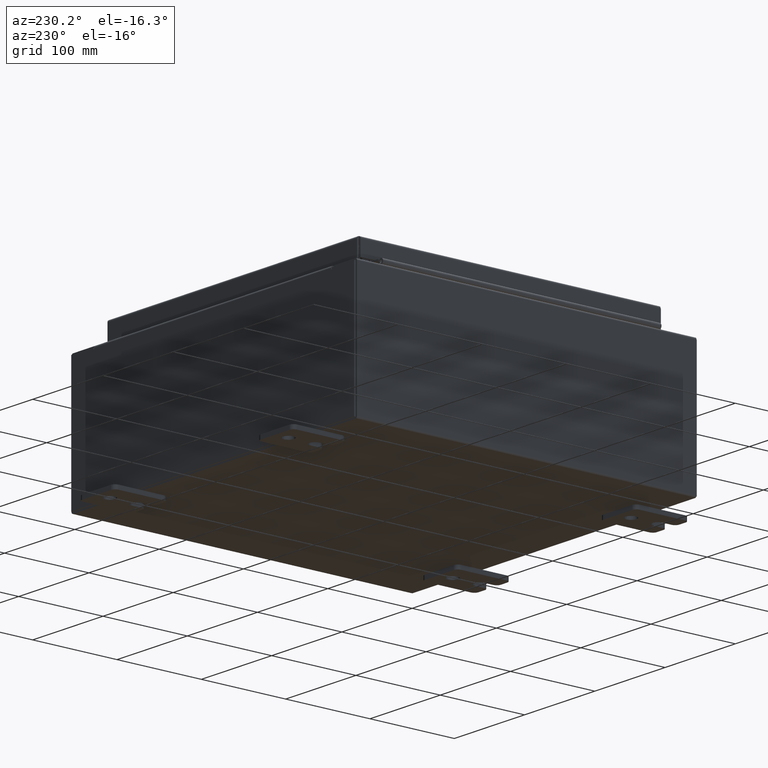
[diagram: clean part render]
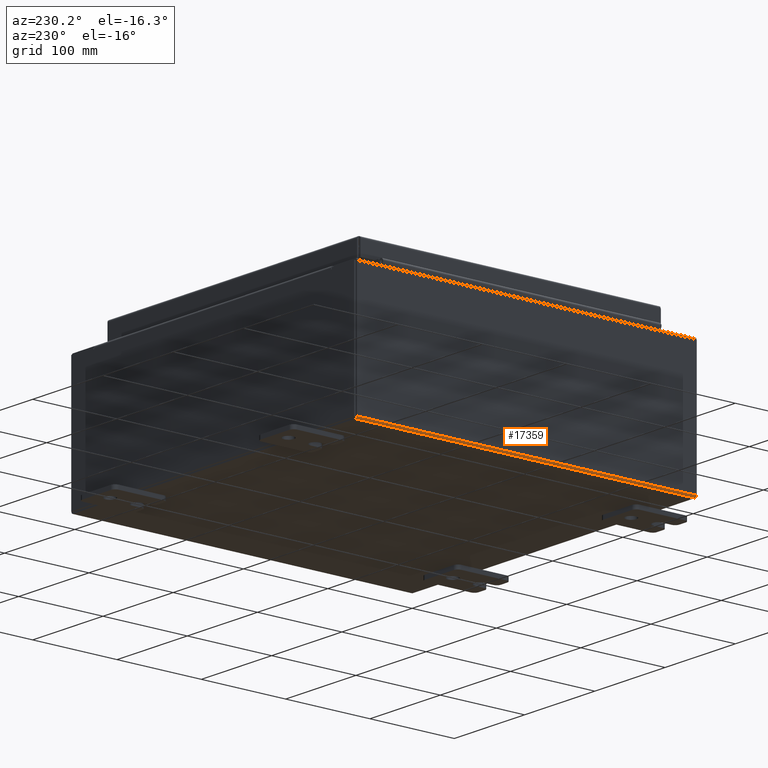
[diagram: same view with one face highlighted and labeled with its STEP entity id]
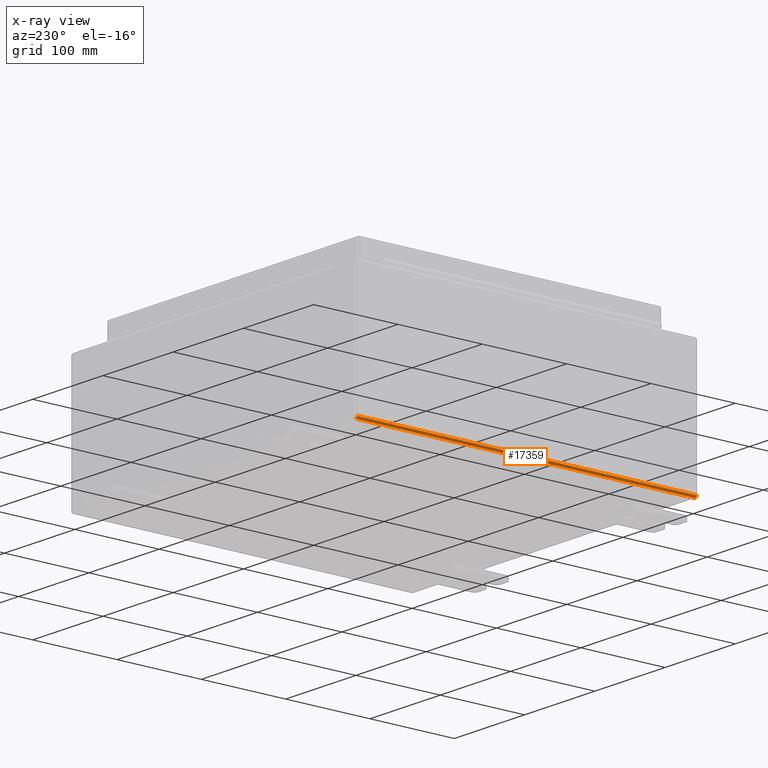
[diagram: x-ray of the same camera — body ghosted, the highlighted face saturated]
A machine part, auxiliary view. The second image highlights one B-rep face of the part: STEP entity #17359.
The next image is the same camera in x-ray: the body ghosted, the highlighted face saturated — about 0% of this face is hidden behind the body in this view.
In plain terms, the highlighted cylindrical surface (edge-blend (fillet) strip) has radius 2.2276 mm, axis along (0, -1, 0).
Its self-contained STEP definition (entity closure, byte-faithful):
#3608 = CARTESIAN_POINT ( 'NONE',  ( -7.912300000000001000, -7.925300000000000900, -0.07469999999999994700 ) ) ;
#6359 = CARTESIAN_POINT ( 'NONE',  ( -7.912300000000001000, -7.925300000000000900, 0.01300000000000015200 ) ) ;
#6621 = ORIENTED_EDGE ( 'NONE', *, *, #76442, .F. ) ;
#11426 = EDGE_CURVE ( 'NONE', #31924, #101505, #64102, .T. ) ;
#14631 = DIRECTION ( 'NONE',  ( 0.0000000000000000000, 0.0000000000000000000, -1.000000000000000000 ) ) ;
#17359 = ADVANCED_FACE ( 'NONE', ( #60896 ), #77757, .T. ) ;
#29583 = CARTESIAN_POINT ( 'NONE',  ( -7.912300000000001000, 7.925299999999998200, 0.01300000000000015200 ) ) ;
#31924 = VERTEX_POINT ( 'NONE', #47425 ) ;
#34865 = ORIENTED_EDGE ( 'NONE', *, *, #11426, .F. ) ;
#36158 = DIRECTION ( 'NONE',  ( -0.0000000000000000000, 1.000000000000000000, -0.0000000000000000000 ) ) ;
#37910 = DIRECTION ( 'NONE',  ( 0.0000000000000000000, 0.0000000000000000000, -1.000000000000000000 ) ) ;
#39115 = EDGE_LOOP ( 'NONE', ( #34865, #6621, #100061, #82092 ) ) ;
#39466 = CARTESIAN_POINT ( 'NONE',  ( -7.912300000000001000, -7.925300000000000900, 0.01300000000000015200 ) ) ;
#44553 = AXIS2_PLACEMENT_3D ( 'NONE', #6359, #63994, #14631 ) ;
#47425 = CARTESIAN_POINT ( 'NONE',  ( -7.912300000000001000, -7.925300000000000900, -0.07469999999999994700 ) ) ;
#47732 = DIRECTION ( 'NONE',  ( 0.0000000000000000000, -1.000000000000000000, 0.0000000000000000000 ) ) ;
#49218 = EDGE_CURVE ( 'NONE', #101505, #96943, #100423, .T. ) ;
#55896 = CARTESIAN_POINT ( 'NONE',  ( -7.912300000000001000, 7.925299999999998200, -0.07470000000000000300 ) ) ;
#60029 = AXIS2_PLACEMENT_3D ( 'NONE', #39466, #47732, #88986 ) ;
#60896 = FACE_OUTER_BOUND ( 'NONE', #39115, .T. ) ;
#62142 = VERTEX_POINT ( 'NONE', #74601 ) ;
#62754 = EDGE_CURVE ( 'NONE', #62142, #96943, #68811, .T. ) ;
#63994 = DIRECTION ( 'NONE',  ( 0.0000000000000000000, -1.000000000000000000, 0.0000000000000000000 ) ) ;
#64102 = LINE ( 'NONE', #3608, #103127 ) ;
#65689 = CIRCLE ( 'NONE', #44553, 0.08770000000000009700 ) ;
#68811 = LINE ( 'NONE', #85660, #93607 ) ;
#74601 = CARTESIAN_POINT ( 'NONE',  ( -8.000000000000001800, -7.925300000000000900, 0.01299999999999984700 ) ) ;
#76442 = EDGE_CURVE ( 'NONE', #62142, #31924, #65689, .T. ) ;
#77757 = CYLINDRICAL_SURFACE ( 'NONE', #60029, 0.08770000000000026400 ) ;
#82092 = ORIENTED_EDGE ( 'NONE', *, *, #49218, .F. ) ;
#85660 = CARTESIAN_POINT ( 'NONE',  ( -8.000000000000001800, 7.925299999999998200, 0.01299999999999984700 ) ) ;
#87431 = DIRECTION ( 'NONE',  ( -0.0000000000000000000, 1.000000000000000000, -0.0000000000000000000 ) ) ;
#88986 = DIRECTION ( 'NONE',  ( -1.000000000000000000, 0.0000000000000000000, -3.504366012397134600E-015 ) ) ;
#93607 = VECTOR ( 'NONE', #36158, 39.37007874015748100 ) ;
#96143 = DIRECTION ( 'NONE',  ( -0.0000000000000000000, 1.000000000000000000, -0.0000000000000000000 ) ) ;
#96943 = VERTEX_POINT ( 'NONE', #105036 ) ;
#100061 = ORIENTED_EDGE ( 'NONE', *, *, #62754, .T. ) ;
#100423 = CIRCLE ( 'NONE', #105259, 0.08770000000000009700 ) ;
#101505 = VERTEX_POINT ( 'NONE', #55896 ) ;
#103127 = VECTOR ( 'NONE', #96143, 39.37007874015748100 ) ;
#105036 = CARTESIAN_POINT ( 'NONE',  ( -8.000000000000001800, 7.925299999999998200, 0.01299999999999984500 ) ) ;
#105259 = AXIS2_PLACEMENT_3D ( 'NONE', #29583, #87431, #37910 ) ;